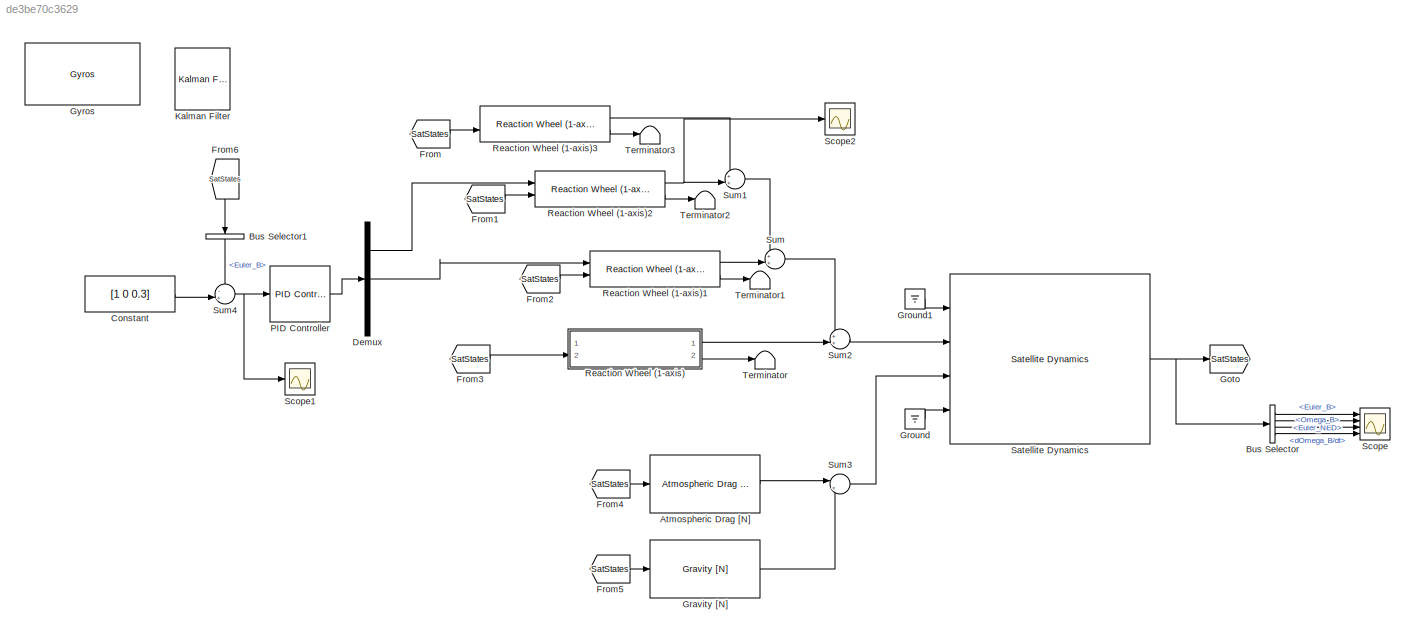
MODEL slx_de3be70c3629
KIND model
CONFIG AbsTol = auto
CONFIG EnableMultiTasking = off
CONFIG FixedStep = dT
CONFIG MaxStep = auto
CONFIG MinStep = auto
CONFIG RelTol = 1e-3
CONFIG SampleTimeConstraint = Unconstrained
CONFIG Solver = ode14x
CONFIG SolverName = ode14x
CONFIG StartTime = 0.0
CONFIG StopTime = 20
BLOCK [Reference] Atmospheric Drag [N]  REF=scars_library/Environment/Atmospheric Drag [N]  (lib defined in slx_0992aaab4a30)
  Commented = on
  Ports = [1, 1]
  SourceBlock = scars_library/Environment/Atmospheric Drag [N]
BLOCK [BusSelector] Bus Selector
  OutputAsBus = off
  OutputSignals = Euler_B,Euler_NED,Omega_B,dOmega_B/dt
  Ports = [1, 4]
BLOCK [BusSelector] Bus Selector1
  Commented = on
  OutputAsBus = off
  OutputSignals = Euler_B
  Ports = [1, 1]
BLOCK [Constant] Constant
  Commented = on
  Value = [1 0 0.3]
BLOCK [Demux] Demux
  Commented = on
  DisplayOption = bar
  Outputs = 3
  Ports = [1, 3]
BLOCK [From] From
  Commented = on
  GotoTag = SatStates
BLOCK [From] From1
  Commented = on
  GotoTag = SatStates
BLOCK [From] From2
  Commented = on
  GotoTag = SatStates
BLOCK [From] From3
  GotoTag = SatStates
BLOCK [From] From4
  Commented = on
  GotoTag = SatStates
BLOCK [From] From5
  GotoTag = SatStates
BLOCK [From] From6
  Commented = on
  GotoTag = SatStates
BLOCK [Goto] Goto
  GotoTag = SatStates
BLOCK [Reference] Gravity [N]  REF=scars_library/Environment/Gravity [N]  (lib defined in slx_0992aaab4a30)
  Ports = [1, 1]
  SourceBlock = scars_library/Environment/Gravity [N]
  SourceType = Gravity
BLOCK [Ground] Ground
BLOCK [Ground] Ground1
BLOCK [Reference] Gyros  REF=scars_library/Sensors/Gyros  (lib defined in slx_0992aaab4a30)
  Commented = on
  Ports = [1, 1]
  SourceBlock = scars_library/Sensors/Gyros
BLOCK [Reference] Kalman Filter  REF=ctrlSharedLib/Kalman Filter
  Commented = on
  Ports = [2, 1]
  SourceBlock = ctrlSharedLib/Kalman Filter
  SourceProductBaseCode = CT
  SourceProductName = Control System Toolbox
  SourceType = ctrlKalmanFilter
BLOCK [Reference] PID Controller  REF=scars_library/ Control Algorithms /PID Controller  (lib defined in slx_0992aaab4a30)
  Commented = on
  Ports = [1, 1]
  SourceBlock = scars_library/ Control Algorithms /PID Controller
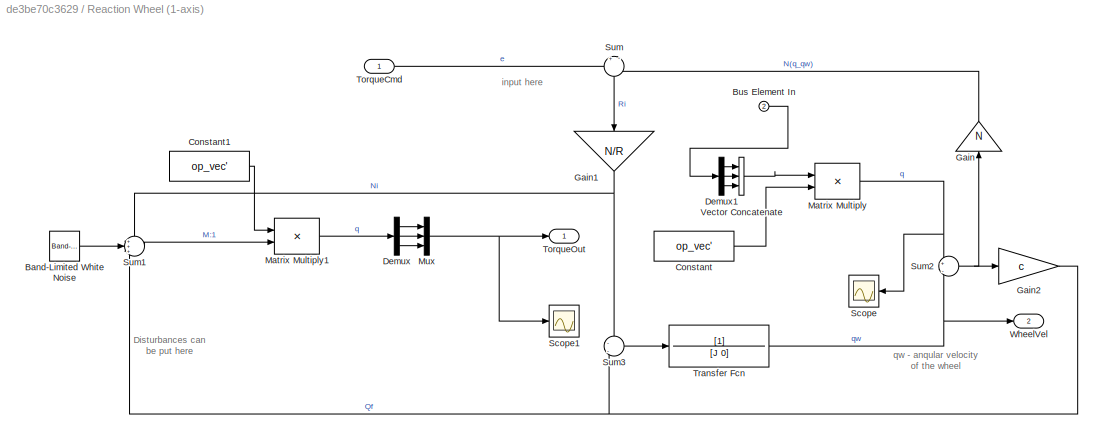
BLOCK [SubSystem] Reaction Wheel (1-axis)
  AncestorBlock = scars_library/Actuators/Reaction Wheel (1-axis)
  Ports = [2, 2]
  RequestExecContextInheritance = off
BLOCK [Reference] Reaction Wheel (1-axis)/Band-Limited White Noise  REF=simulink/Sources/Band-Limited
White Noise
  Ports = [0, 1]
  SourceBlock = simulink/Sources/Band-Limited\nWhite Noise
  SourceProductBaseCode = SL
  SourceProductName = Simulink
  SourceType = Band-Limited White Noise.
BLOCK [Inport] Reaction Wheel (1-axis)/Bus Element In
  IconDisplay = Port number
  Port = 2
BLOCK [Constant] Reaction Wheel (1-axis)/Constant
  Value = op_vec'
  VectorParams1D = off
BLOCK [Constant] Reaction Wheel (1-axis)/Constant1
  Value = op_vec'
  VectorParams1D = off
BLOCK [Demux] Reaction Wheel (1-axis)/Demux
  DisplayOption = bar
  Outputs = 3
  Ports = [1, 3]
BLOCK [Demux] Reaction Wheel (1-axis)/Demux1
  DisplayOption = bar
  Outputs = 3
  Ports = [1, 3]
BLOCK [Gain] Reaction Wheel (1-axis)/Gain
  Gain = N
  OutDataTypeStr = Inherit: Inherit via internal rule
  ParamDataTypeStr = Inherit: Inherit via internal rule
  SaturateOnIntegerOverflow = off
BLOCK [Gain] Reaction Wheel (1-axis)/Gain1
  Gain = N/R
  OutDataTypeStr = Inherit: Inherit via internal rule
  ParamDataTypeStr = Inherit: Inherit via internal rule
  SaturateOnIntegerOverflow = off
BLOCK [Gain] Reaction Wheel (1-axis)/Gain2
  Gain = c
  OutDataTypeStr = Inherit: Inherit via internal rule
  ParamDataTypeStr = Inherit: Inherit via internal rule
  SaturateOnIntegerOverflow = off
BLOCK [Product] Reaction Wheel (1-axis)/Matrix Multiply
  InputSameDT = off
  Multiplication = Matrix(*)
  OutDataTypeStr = Inherit: Inherit via internal rule
  Ports = [2, 1]
  RndMeth = Floor
  SaturateOnIntegerOverflow = off
BLOCK [Product] Reaction Wheel (1-axis)/Matrix Multiply1
  InputSameDT = off
  OutDataTypeStr = Inherit: Inherit via internal rule
  Ports = [2, 1]
  RndMeth = Floor
  SaturateOnIntegerOverflow = off
BLOCK [Mux] Reaction Wheel (1-axis)/Mux
  DisplayOption = bar
  Inputs = 3
  Ports = [3, 1]
BLOCK [Scope] Reaction Wheel (1-axis)/Scope
  Floating = off
  NumInputPorts = 1
  Ports = [1]
  ScopeSpecificationString = Simulink.scopes.TimeScopeBlockCfg('CurrentConfiguration', extmgr.ConfigurationSet(extmgr.Configuration('Core','General UI',true),extmgr.Configuration('Core','Source UI',true),extmgr.Configuration('Sources','WiredSimulink',true,'DataLoggingVariableName','ScopeData1'),extmgr.Configuration('Visuals','Time Domain',true,'SerializedDisplays',{struct('MinYLimReal','-0.02099','MaxYLimReal','0.06021','YLab...<+1385ch>
BLOCK [Scope] Reaction Wheel (1-axis)/Scope1
  Floating = off
  NumInputPorts = 1
  Ports = [1]
  ScopeSpecificationString = Simulink.scopes.TimeScopeBlockCfg('CurrentConfiguration', extmgr.ConfigurationSet(extmgr.Configuration('Core','General UI',true),extmgr.Configuration('Core','Source UI',true),extmgr.Configuration('Sources','WiredSimulink',true,'DataLoggingVariableName','ScopeData2'),extmgr.Configuration('Visuals','Time Domain',true,'SerializedDisplays',{struct('MinYLimReal','-0.0977','MaxYLimReal','0.1194','YLabel...<+1405ch>
BLOCK [Sum] Reaction Wheel (1-axis)/Sum
  IconShape = round
  InputSameDT = off
  Inputs = +|-
  OutDataTypeStr = Inherit: Inherit via internal rule
  Ports = [2, 1]
  SaturateOnIntegerOverflow = off
BLOCK [Sum] Reaction Wheel (1-axis)/Sum1
  IconShape = round
  InputSameDT = off
  Inputs = +++
  OutDataTypeStr = Inherit: Inherit via internal rule
  Ports = [3, 1]
  SaturateOnIntegerOverflow = off
BLOCK [Sum] Reaction Wheel (1-axis)/Sum2
  IconShape = round
  InputSameDT = off
  Inputs = +|-
  OutDataTypeStr = Inherit: Inherit via internal rule
  Ports = [2, 1]
  SaturateOnIntegerOverflow = off
BLOCK [Sum] Reaction Wheel (1-axis)/Sum3
  IconShape = round
  InputSameDT = off
  Inputs = -|-
  OutDataTypeStr = Inherit: Inherit via internal rule
  Ports = [2, 1]
  SaturateOnIntegerOverflow = off
BLOCK [Inport] Reaction Wheel (1-axis)/TorqueCmd
  IconDisplay = Port number
BLOCK [Outport] Reaction Wheel (1-axis)/TorqueOut
  IconDisplay = Port number
BLOCK [TransferFcn] Reaction Wheel (1-axis)/Transfer Fcn
  Denominator = [J 0]
BLOCK [Concatenate] Reaction Wheel (1-axis)/Vector Concatenate
  NumInputs = 3
  Ports = [3, 1]
BLOCK [Outport] Reaction Wheel (1-axis)/WheelVel
  IconDisplay = Port number
  Port = 2
BLOCK [Reference] Reaction Wheel (1-axis)1  REF=scars_library/Actuators/Reaction Wheel (1-axis)  (lib defined in slx_0992aaab4a30)
  Commented = on
  Ports = [2, 2]
  SourceBlock = scars_library/Actuators/Reaction Wheel (1-axis)
  SourceType = SubSystem
BLOCK [Reference] Reaction Wheel (1-axis)2  REF=scars_library/Actuators/Reaction Wheel (1-axis)  (lib defined in slx_0992aaab4a30)
  Commented = on
  Ports = [2, 2]
  SourceBlock = scars_library/Actuators/Reaction Wheel (1-axis)
  SourceType = SubSystem
BLOCK [Reference] Reaction Wheel (1-axis)3  REF=scars_library/Actuators/Reaction Wheel (1-axis)  (lib defined in slx_0992aaab4a30)
  Commented = on
  Ports = [2, 2]
  SourceBlock = scars_library/Actuators/Reaction Wheel (1-axis)
  SourceType = SubSystem
BLOCK [Reference] Satellite Dynamics  REF=scars_library/Advanced/Satellite Dynamics  (lib defined in slx_0992aaab4a30)
  Ports = [4, 1]
  SourceBlock = scars_library/Advanced/Satellite Dynamics
  SourceType = Sattellite Dynamics
BLOCK [Scope] Scope
  Floating = off
  NumInputPorts = 4
  Ports = [4]
  ScopeSpecificationString = Simulink.scopes.TimeScopeBlockCfg('CurrentConfiguration', extmgr.ConfigurationSet(extmgr.Configuration('Core','General UI',true),extmgr.Configuration('Core','Source UI',true),extmgr.Configuration('Sources','WiredSimulink',true),extmgr.Configuration('Visuals','Time Domain',true,'SerializedDisplays',{struct('MinYLimReal','0.07471','MaxYLimReal','1.42202','YLabelReal','','MinYLimMag','0.07471','MaxYL...<+3541ch>
BLOCK [Scope] Scope1
  Commented = on
  Floating = off
  NumInputPorts = 1
  Ports = [1]
  ScopeSpecificationString = Simulink.scopes.TimeScopeBlockCfg('CurrentConfiguration', extmgr.ConfigurationSet(extmgr.Configuration('Core','General UI',true),extmgr.Configuration('Core','Source UI',true),extmgr.Configuration('Sources','WiredSimulink',true,'DataLoggingVariableName','ScopeData1'),extmgr.Configuration('Visuals','Time Domain',true,'SerializedDisplays',{struct('MinYLimReal','-0.01814','MaxYLimReal','0.00228','YLab...<+1532ch>
BLOCK [Scope] Scope2
  Commented = on
  Floating = off
  NumInputPorts = 1
  Ports = [1]
  ScopeSpecificationString = Simulink.scopes.TimeScopeBlockCfg('CurrentConfiguration', extmgr.ConfigurationSet(extmgr.Configuration('Core','General UI',true),extmgr.Configuration('Core','Source UI',true),extmgr.Configuration('Sources','WiredSimulink',true,'DataLoggingVariableName','ScopeData2'),extmgr.Configuration('Visuals','Time Domain',true,'SerializedDisplays',{struct('MinYLimReal','-0.04681','MaxYLimReal','0.28422','YLab...<+1504ch>
BLOCK [Sum] Sum
  Commented = on
  IconShape = round
  InputSameDT = off
  Inputs = ++|
  OutDataTypeStr = Inherit: Inherit via internal rule
  Ports = [2, 1]
  SaturateOnIntegerOverflow = off
BLOCK [Sum] Sum1
  Commented = on
  IconShape = round
  InputSameDT = off
  Inputs = ++|
  OutDataTypeStr = Inherit: Inherit via internal rule
  Ports = [2, 1]
  SaturateOnIntegerOverflow = off
BLOCK [Sum] Sum2
  IconShape = round
  InputSameDT = off
  Inputs = ++|
  OutDataTypeStr = Inherit: Inherit via internal rule
  Ports = [2, 1]
  SaturateOnIntegerOverflow = off
BLOCK [Sum] Sum3
  IconShape = round
  InputSameDT = off
  Inputs = |++
  OutDataTypeStr = Inherit: Inherit via internal rule
  Ports = [2, 1]
  SaturateOnIntegerOverflow = off
BLOCK [Sum] Sum4
  Commented = on
  IconShape = round
  InputSameDT = off
  Inputs = -+|
  OutDataTypeStr = Inherit: Inherit via internal rule
  Ports = [2, 1]
  SaturateOnIntegerOverflow = off
BLOCK [Terminator] Terminator
BLOCK [Terminator] Terminator1
  Commented = on
BLOCK [Terminator] Terminator2
  Commented = on
BLOCK [Terminator] Terminator3
  Commented = on
ANNOTATION Reaction Wheel (1-axis): Disturbances can be put here
ANNOTATION Reaction Wheel (1-axis): input here
ANNOTATION Reaction Wheel (1-axis): qw - anqular velocity of the wheel
LINE Atmospheric Drag [N]:1 -> Sum3:1
LINE Bus Selector1:1 -> Sum4:1
LINE Bus Selector:1 -> Scope:1
LINE Bus Selector:2 -> Scope:2
LINE Bus Selector:3 -> Scope:3
LINE Bus Selector:4 -> Scope:4
LINE Constant:1 -> Sum4:2
LINE Demux:1 -> Reaction Wheel (1-axis)2:1
LINE Demux:2 -> Reaction Wheel (1-axis)1:1
LINE From1:1 -> Reaction Wheel (1-axis)2:2
LINE From2:1 -> Reaction Wheel (1-axis)1:2
LINE From3:1 -> Reaction Wheel (1-axis):2
LINE From4:1 -> Atmospheric Drag [N]:1
LINE From5:1 -> Gravity [N]:1
LINE From6:1 -> Bus Selector1:1
LINE From:1 -> Reaction Wheel (1-axis)3:2
LINE Gravity [N]:1 -> Sum3:2
LINE Ground1:1 -> Satellite Dynamics:1
LINE Ground:1 -> Satellite Dynamics:4
LINE PID Controller:1 -> Demux:1
LINE Reaction Wheel (1-axis)1:1 -> Sum:2
LINE Reaction Wheel (1-axis)1:2 -> Terminator1:1
NET Reaction Wheel (1-axis)2:1 -> Scope2:1, Sum1:2
LINE Reaction Wheel (1-axis)2:2 -> Terminator2:1
LINE Reaction Wheel (1-axis)3:1 -> Sum1:1
LINE Reaction Wheel (1-axis)3:2 -> Terminator3:1
LINE Reaction Wheel (1-axis):1 -> Sum2:2
LINE Reaction Wheel (1-axis):2 -> Terminator:1
NET Satellite Dynamics:1 -> Bus Selector:1, Goto:1
LINE Sum1:1 -> Sum:1
LINE Sum2:1 -> Satellite Dynamics:2
LINE Sum3:1 -> Satellite Dynamics:3
NET Sum4:1 -> PID Controller:1, Scope1:1
LINE Sum:1 -> Sum2:1
note: NET lines group one-source signal fan-out (src -> all destinations, sorted); 1:1 wires keep LINE
